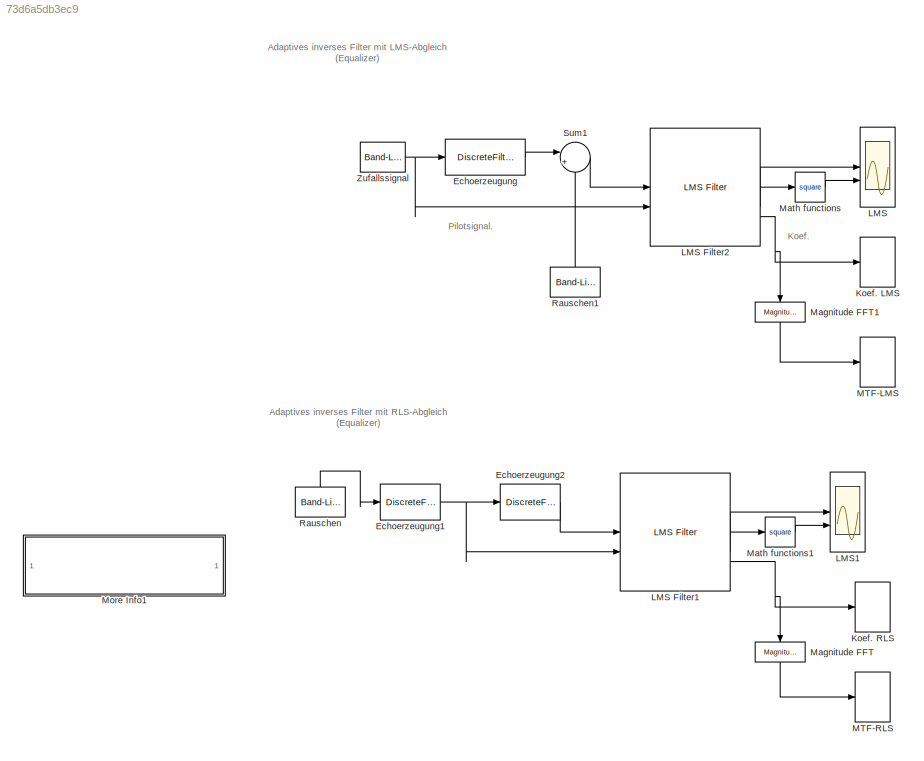
MODEL mdl_73d6a5db3ec9
KIND model
CONFIG AbsTol = auto
CONFIG EnableMultiTasking = on
CONFIG FixedStep = auto
CONFIG MaxStep = auto
CONFIG MinStep = auto
CONFIG RelTol = 1e-3
CONFIG SampleTimeConstraint = Unconstrained
CONFIG SolverName = ode45
CONFIG StartTime = 0.0
CONFIG StopTime = 100000.0
BLOCK [DiscreteFilter] Echoerzeugung
  CloseFcn = dspblkCoreblockFVToolHelper(gcbh,'close');
  CopyFcn = dspblkCoreblockFVToolHelper(gcbh,'copy');
  DeleteFcn = dspblkCoreblockFVToolHelper(gcbh,'close');
  Denominator = [1 ]
  InputPortMap = u0
  LoadFcn = dspblkCoreblockFVToolHelper(gcbh,'load');
  ModelCloseFcn = dspblkCoreblockFVToolHelper(gcbh,'close');
  NameLocation = top
  Numerator = [1 2 1]
  PostSaveFcn = dspblkCoreblockFVToolHelper(gcbh,'postsave');
  PreSaveFcn = dspblkCoreblockFVToolHelper(gcbh,'presave');
  SampleTime = 1
BLOCK [DiscreteFilter] Echoerzeugung1
  CloseFcn = dspblkCoreblockFVToolHelper(gcbh,'close');
  CopyFcn = dspblkCoreblockFVToolHelper(gcbh,'copy');
  DeleteFcn = dspblkCoreblockFVToolHelper(gcbh,'close');
  Denominator = [1 ]
  InputPortMap = u0
  LoadFcn = dspblkCoreblockFVToolHelper(gcbh,'load');
  ModelCloseFcn = dspblkCoreblockFVToolHelper(gcbh,'close');
  NameLocation = top
  Numerator = [1 0 0.5]
  PostSaveFcn = dspblkCoreblockFVToolHelper(gcbh,'postsave');
  PreSaveFcn = dspblkCoreblockFVToolHelper(gcbh,'presave');
  SampleTime = 1
BLOCK [DiscreteFilter] Echoerzeugung2
  CloseFcn = dspblkCoreblockFVToolHelper(gcbh,'close');
  CopyFcn = dspblkCoreblockFVToolHelper(gcbh,'copy');
  DeleteFcn = dspblkCoreblockFVToolHelper(gcbh,'close');
  Denominator = [1 ]
  InputPortMap = u0
  LoadFcn = dspblkCoreblockFVToolHelper(gcbh,'load');
  ModelCloseFcn = dspblkCoreblockFVToolHelper(gcbh,'close');
  NameLocation = top
  Numerator = [0 1]
  PostSaveFcn = dspblkCoreblockFVToolHelper(gcbh,'postsave');
  PreSaveFcn = dspblkCoreblockFVToolHelper(gcbh,'presave');
  SampleTime = 1
BLOCK [ArrayPlot] Koef. LMS
  AxesScaling = Manual
  ChannelNames = [""]
  DefaultConfigurationName = dsp.scopes.ArrayPlotBlockSpecification
  GraphicalSettings = {"GraphicalSettings":{"Style":{"AxesColor":"[0 0 0]","DisplayName":"Channel 1","LabelsColor":"[0.686274509803922 0.686274509803922 0.686274509803922]","LineColor":"[[1 1 0.0666666666666667]]","LineStyle":"[-]","LineWidth":"[0.75]","Marker":"[.]","MarkerEdgeColor":"auto","MarkerFaceColor":"none","MarkerSize":"6","VectorScopeLegacyMode":"true","Visible":"on"}}}  <repeated x4 — deduplicated; at blocks: Koef. LMS, Koef. RLS, MTF-LMS, MTF-RLS>
  MaximizeAxes = Off
  MultipleDisplayCache = {"PlotAsMagnitudePhase":[false],"ShowGrid":[false],"ShowLegend":[false],"Title":[""],"XLabel":["Index"],"YLabel":["LMS-Koeffizienten"],"YLimits":["[-0.48731,0.83885]"]}
  PlotType = Line
  ScopeFrameLocation = window
  ScopeSpecificationString = dsp.scopes.ArrayPlotBlockSpecification('CurrentConfiguration', extmgr.ConfigurationSet(extmgr.Configuration('Core','General UI',true),extmgr.Configuration('Core','Source UI',true),extmgr.Configuration('Sources','WiredSimulink',true),extmgr.Configuration('Visuals','Array Plot',true,'VectorScopeLegacyMode',true,'DisplayPropertyDefaults',struct('MinYLimReal','-0.48731','MaxYLimReal','0.83885','YLabel...<+1730ch>
  ShowGrid = off
  Visible = on
  WasSavedAsWebScope = on
  WindowPosition = [107.000000,93.000000,450.000000,360.000000,]
  XLabel = Index
  YLabel = LMS-Koeffizienten
  YLimits = [-0.48731,0.83885]
BLOCK [ArrayPlot] Koef. RLS
  AxesScaling = Manual
  ChannelNames = [""]
  DefaultConfigurationName = dsp.scopes.ArrayPlotBlockSpecification
  MaximizeAxes = Off
  MultipleDisplayCache = {"PlotAsMagnitudePhase":[false],"ShowGrid":[false],"ShowLegend":[false],"Title":[""],"XLabel":["Index"],"YLabel":["RLS-Koeffizienten"],"YLimits":["[-0.42569,0.37868]"]}
  PlotType = Line
  ScopeFrameLocation = window
  ScopeSpecificationString = dsp.scopes.ArrayPlotBlockSpecification('CurrentConfiguration', extmgr.ConfigurationSet(extmgr.Configuration('Core','General UI',true),extmgr.Configuration('Core','Source UI',true),extmgr.Configuration('Sources','WiredSimulink',true),extmgr.Configuration('Visuals','Array Plot',true,'VectorScopeLegacyMode',true,'DisplayPropertyDefaults',struct('MinYLimReal','-0.42569','MaxYLimReal','0.37868','YLabel...<+1724ch>
  ShowGrid = off
  Visible = on
  WasSavedAsWebScope = on
  WindowPosition = [491.000000,123.000000,450.000000,360.000000,]
  XLabel = Index
  YLabel = RLS-Koeffizienten
  YLimits = [-0.42569,0.37868]
BLOCK [Scope] LMS
  AttributesFormatString = test
  Floating = off
  NumInputPorts = 2
  ScopeSpecificationString = Simulink.scopes.TimeScopeBlockCfg('CurrentConfiguration', extmgr.ConfigurationSet(extmgr.Configuration('Core','General UI',true),extmgr.Configuration('Core','Source UI',true),extmgr.Configuration('Sources','WiredSimulink',true,'DataLoggingVariableName','ScopeData1','DataLoggingSaveFormat','StructureWithTime','DataLoggingDecimation','1','DataLoggingDecimateData',true),extmgr.Configuration('Visuals'...<+2609ch>
BLOCK [Reference] LMS Filter1  REF=dspadpt3/LMS Filter
  SourceBlock = dspadpt3/LMS Filter
  SourceType = LMS Filter
BLOCK [Reference] LMS Filter2  REF=dspadpt3/LMS Filter
  SourceBlock = dspadpt3/LMS Filter
  SourceType = LMS Filter
BLOCK [Scope] LMS1
  AttributesFormatString = test
  Floating = off
  NumInputPorts = 2
  ScopeSpecificationString = Simulink.scopes.TimeScopeBlockCfg('CurrentConfiguration', extmgr.ConfigurationSet(extmgr.Configuration('Core','General UI',true),extmgr.Configuration('Core','Source UI',true),extmgr.Configuration('Sources','WiredSimulink',true,'DataLoggingVariableName','ScopeData1','DataLoggingSaveFormat','StructureWithTime','DataLoggingDecimation','1','DataLoggingDecimateData',true),extmgr.Configuration('Visuals'...<+2611ch>
BLOCK [ArrayPlot] MTF-LMS
  AxesScaling = Manual
  ChannelNames = [""]
  DefaultConfigurationName = dsp.scopes.ArrayPlotBlockSpecification
  MaximizeAxes = Off
  MultipleDisplayCache = {"PlotAsMagnitudePhase":[false],"ShowGrid":[false],"ShowLegend":[false],"Title":[""],"XLabel":["Frequenzzahl"],"YLabel":["LMS-Amplitudengang"],"YLimits":["[0.46544,1.6287]"]}
  PlotType = Line
  ScopeFrameLocation = window
  ScopeSpecificationString = dsp.scopes.ArrayPlotBlockSpecification('CurrentConfiguration', extmgr.ConfigurationSet(extmgr.Configuration('Core','General UI',true),extmgr.Configuration('Core','Source UI',true),extmgr.Configuration('Sources','WiredSimulink',true),extmgr.Configuration('Visuals','Array Plot',true,'VectorScopeLegacyMode',true,'DisplayPropertyDefaults',struct('MinYLimReal','0.46544','MaxYLimReal','1.6287','YLabelRe...<+1741ch>
  ShowGrid = off
  Visible = on
  WasSavedAsWebScope = on
  WindowPosition = [401.000000,50.000000,610.000000,635.000000,]
  XLabel = Frequenzzahl
  YLabel = LMS-Amplitudengang
  YLimits = [0.46544,1.6287]
BLOCK [ArrayPlot] MTF-RLS
  AxesScaling = Manual
  ChannelNames = [""]
  DefaultConfigurationName = dsp.scopes.ArrayPlotBlockSpecification
  MaximizeAxes = Off
  MultipleDisplayCache = {"PlotAsMagnitudePhase":[false],"ShowGrid":[false],"ShowLegend":[false],"Title":[""],"XLabel":["Frequenzzahl"],"YLabel":["RLS-Amplitudengang"],"YLimits":["[0.1012,1.3433]"]}
  PlotType = Line
  ScopeFrameLocation = window
  ScopeSpecificationString = dsp.scopes.ArrayPlotBlockSpecification('CurrentConfiguration', extmgr.ConfigurationSet(extmgr.Configuration('Core','General UI',true),extmgr.Configuration('Core','Source UI',true),extmgr.Configuration('Sources','WiredSimulink',true),extmgr.Configuration('Visuals','Array Plot',true,'VectorScopeLegacyMode',true,'DisplayPropertyDefaults',struct('MinYLimReal','0.1012','MaxYLimReal','1.3433','YLabelRea...<+1736ch>
  ShowGrid = off
  Visible = on
  WasSavedAsWebScope = on
  WindowPosition = [491.000000,123.000000,764.000000,360.000000,]
  XLabel = Frequenzzahl
  YLabel = RLS-Amplitudengang
  YLimits = [0.1012,1.3433]
BLOCK [Reference] Magnitude FFT  REF=dspspect3/Magnitude
FFT
  NameLocation = left
  SourceBlock = dspspect3/Magnitude\nFFT
  SourceType = Magnitude FFT
BLOCK [Reference] Magnitude FFT1  REF=dspspect3/Magnitude
FFT
  NameLocation = left
  SourceBlock = dspspect3/Magnitude\nFFT
  SourceType = Magnitude FFT
BLOCK [Math] Math functions
  Operator = square
  SignedPower = on
BLOCK [Math] Math functions1
  Operator = square
  SignedPower = on
BLOCK [SubSystem] More Info1
BLOCK [Reference] Rauschen  REF=simulink/Sources/Band-Limited
White Noise
  NameLocation = left
  SourceBlock = simulink/Sources/Band-Limited\nWhite Noise
  SourceType = Band-Limited White Noise.
BLOCK [Reference] Rauschen1  REF=simulink/Sources/Band-Limited
White Noise
  NameLocation = left
  SourceBlock = simulink/Sources/Band-Limited\nWhite Noise
  SourceType = Band-Limited White Noise.
BLOCK [Sum] Sum1
  InputSameDT = on
  Inputs = |++
  NameLocation = top
  OutDataTypeStr = Inherit: Same as first input
  SaturateOnIntegerOverflow = on
BLOCK [Reference] Zufallssignal  REF=simulink/Sources/Band-Limited
White Noise
  SourceBlock = simulink/Sources/Band-Limited\nWhite Noise
  SourceType = Band-Limited White Noise.
ANNOTATION (root): Adaptives inverses Filter mit LMS-Abgleich (Equalizer)
ANNOTATION (root): Adaptives inverses Filter mit RLS-Abgleich (Equalizer)
ANNOTATION (root): Koef.
ANNOTATION (root): Pilotsignal.
ANNOTATION More Info1: Adaptives Inverses System (== Entzerrer == Equalizer) =========================================== (c) HSM, B. Wir 7.11 97, 8.8.2012 Starten Sie die Simulation mit SIMULATION, START. Beobachten Sie wie sich die Koeffizienten des Filters langsam einstellen. Durch einen Doppelklick auf das Oszilloskop können Sie die Signale beobachten. Mit der rechten Maustate können Sie AUTOSCALE aktivieren. (i) Ste...<+368ch>
NET Echoerzeugung1:1 -> Echoerzeugung2:1, LMS Filter1:2
LINE Echoerzeugung2:1 -> LMS Filter1:1
LINE Echoerzeugung:1 -> Sum1:1
LINE LMS Filter1:1 -> LMS1:1
LINE LMS Filter1:2 -> Math functions1:1
NET LMS Filter1:3 -> Koef. RLS:1, Magnitude FFT:1
LINE LMS Filter2:1 -> LMS:1
LINE LMS Filter2:2 -> Math functions:1
NET LMS Filter2:3 -> Koef. LMS:1, Magnitude FFT1:1
LINE Magnitude FFT1:1 -> MTF-LMS:1
LINE Magnitude FFT:1 -> MTF-RLS:1
LINE Math functions1:1 -> LMS1:2
LINE Math functions:1 -> LMS:2
LINE Rauschen1:1 -> Sum1:2
LINE Rauschen:1 -> Echoerzeugung1:1
LINE Sum1:1 -> LMS Filter2:1
NET Zufallssignal:1 -> Echoerzeugung:1, LMS Filter2:2
note: NET lines group one-source signal fan-out (src -> all destinations, sorted); 1:1 wires keep LINE
